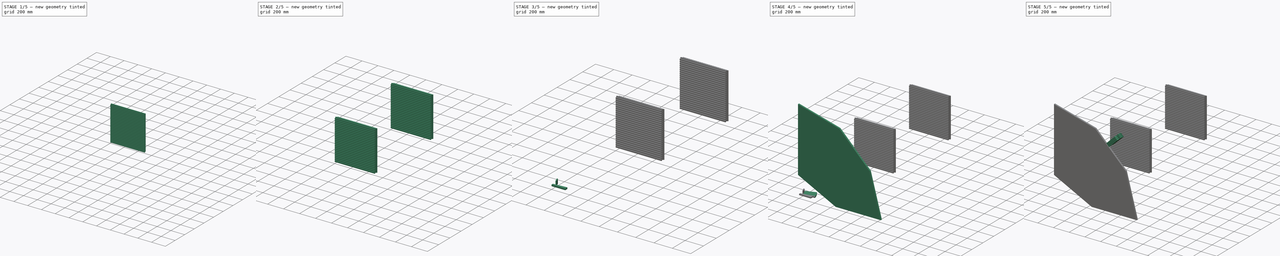
[diagram: build sequence overview — one tinted view per stage of 5, left to right]
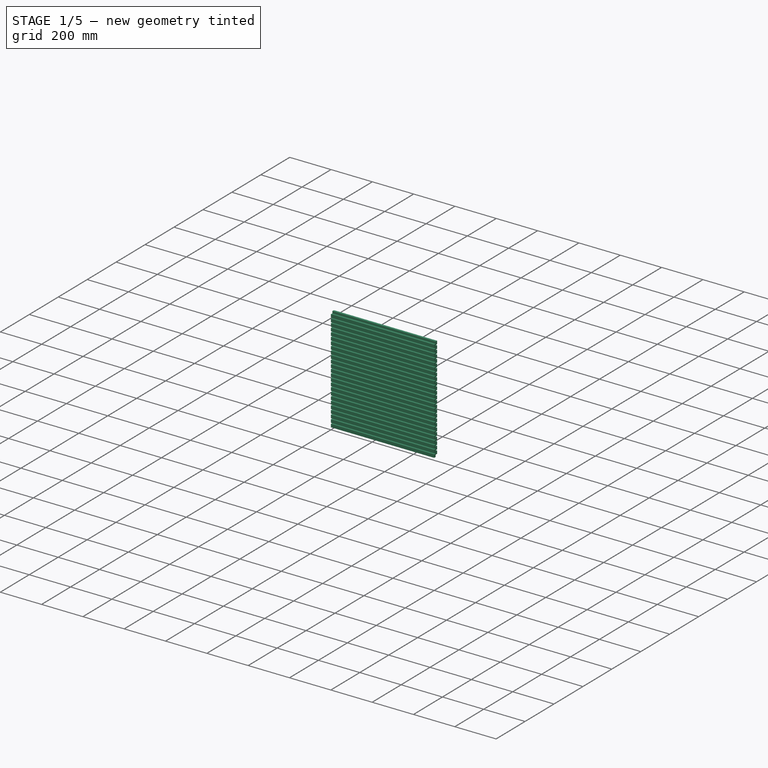
[diagram: stage 1 of 5 — iso view after this stage's code; geometry added in this stage tinted green]
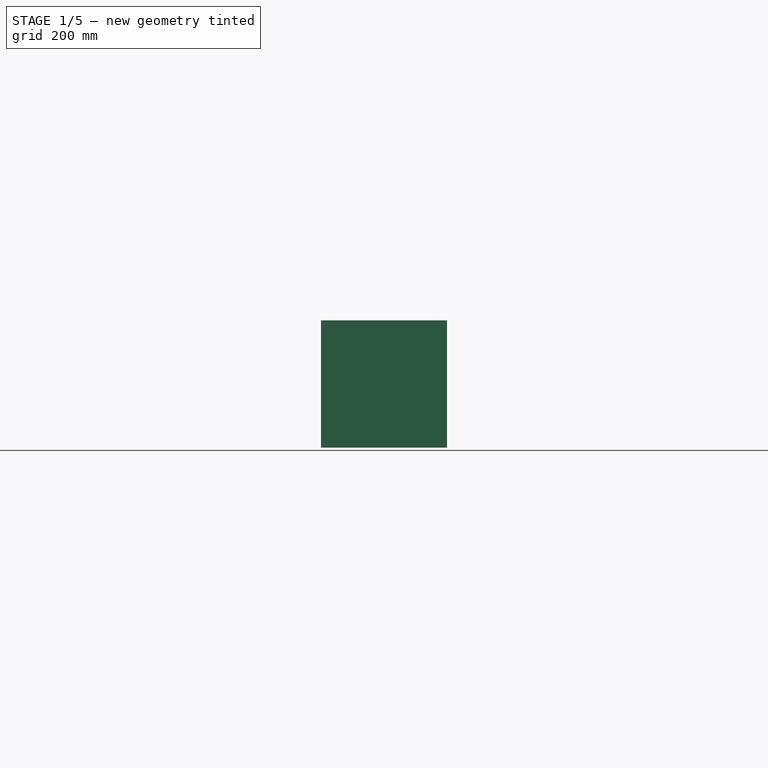
[diagram: stage 1 of 5 — front view after this stage's code; geometry added in this stage tinted green]
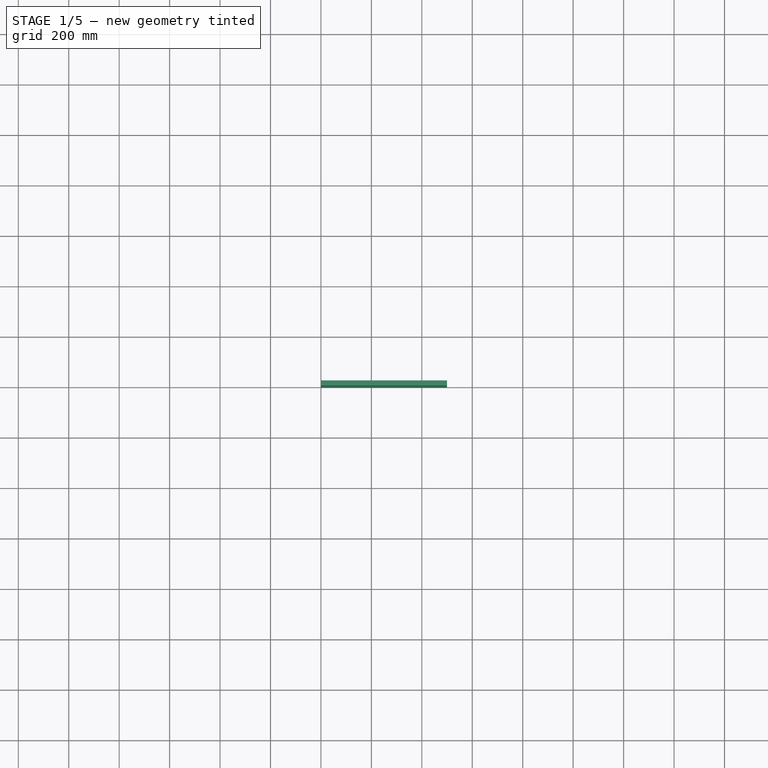
[diagram: stage 1 of 5 — top view after this stage's code; geometry added in this stage tinted green]
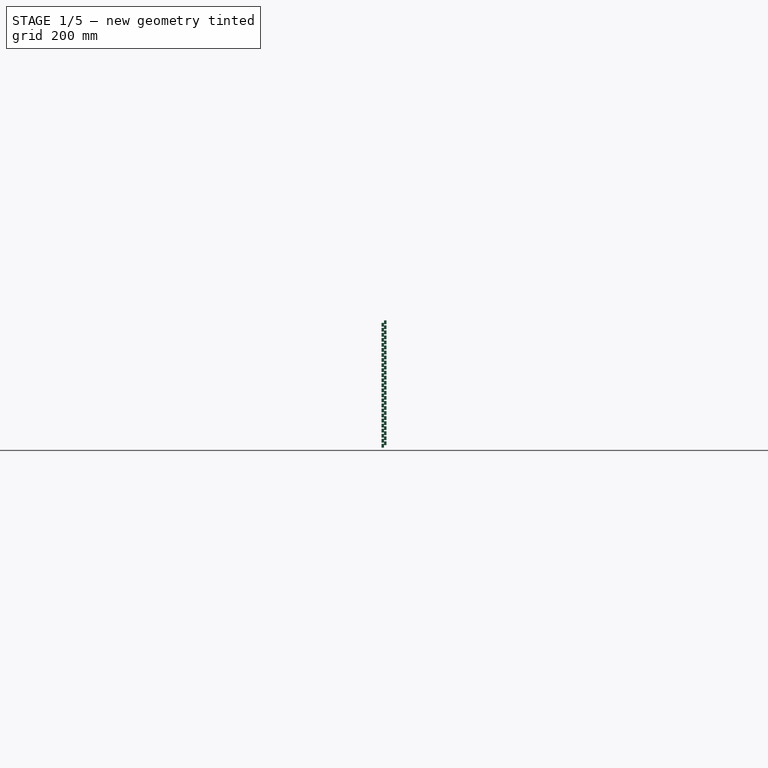
[diagram: stage 1 of 5 — right view after this stage's code; geometry added in this stage tinted green]
FCSTD DOCUMENT  (FreeCAD 0.16R)
Label: edd
License: All rights reserved
LicenseURL: http://en.wikipedia.org/wiki/All_rights_reserved
objects: Part::MultiFuse×7, Part::FeaturePython×6, Sketcher::SketchObject×3, PartDesign::Pad×3, Part::Chamfer×2, Part::Box×2, Part::Cylinder×1
note: 27 computed .brp shape members not serialized (recipe doc carries the construction recipe); baked Part::Feature solids carry a one-line shape summary decoded from their .brp

FEATURE [Part::Box] Box  label="Bar"
  Height = 15
  Length = 500
  Width = 10
FEATURE [Part::FeaturePython] Array002  label="Bars"  # Draft array (typed FeaturePython)
  Angle = 360
  ArrayType = 0
  Axis = (0,0,1)
  Base = -> Box
  Center = (0,0,0)
  Fuse = false
  IntervalAxis = (0,0,0)
  IntervalX = (0,0,0)
  IntervalY = (0,1,0)
  IntervalZ = (0,0,20)
  NumberPolar = 1
  NumberX = 1
  NumberY = 1
  NumberZ = 25
FEATURE [Part::FeaturePython] Clone  label="Bars2"  # Draft clone (typed FeaturePython)
  Objects = -> [Array002]
  Placement = pos=(0,10,10) rot=(0,0,1;0rad)
  Scale = (1,1,1)
FEATURE [Part::MultiFuse] Fusion004  label="BarMatrix1"
  Shapes = -> [Clone,Array002]
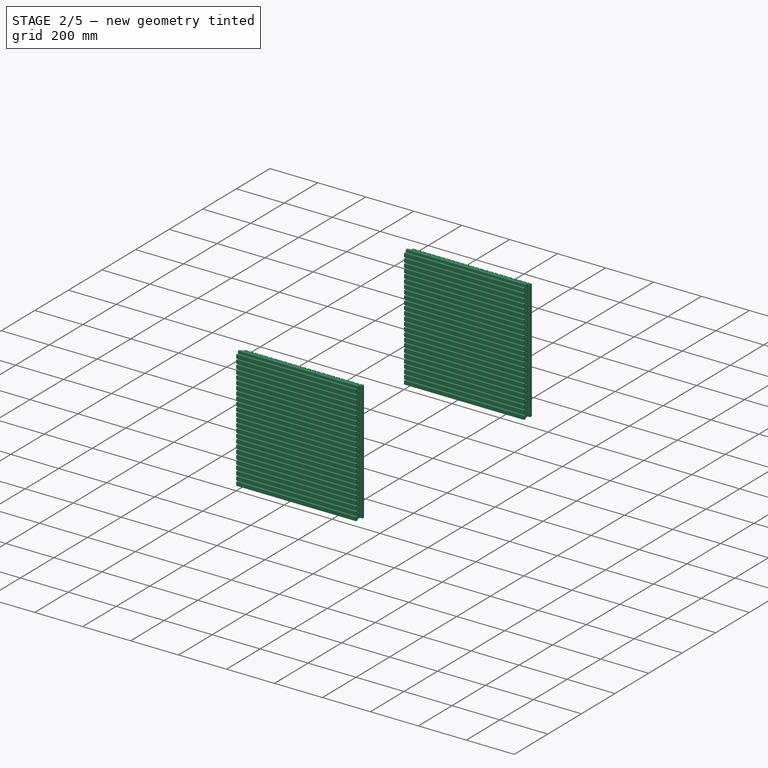
[diagram: stage 2 of 5 — iso view after this stage's code; geometry added in this stage tinted green]
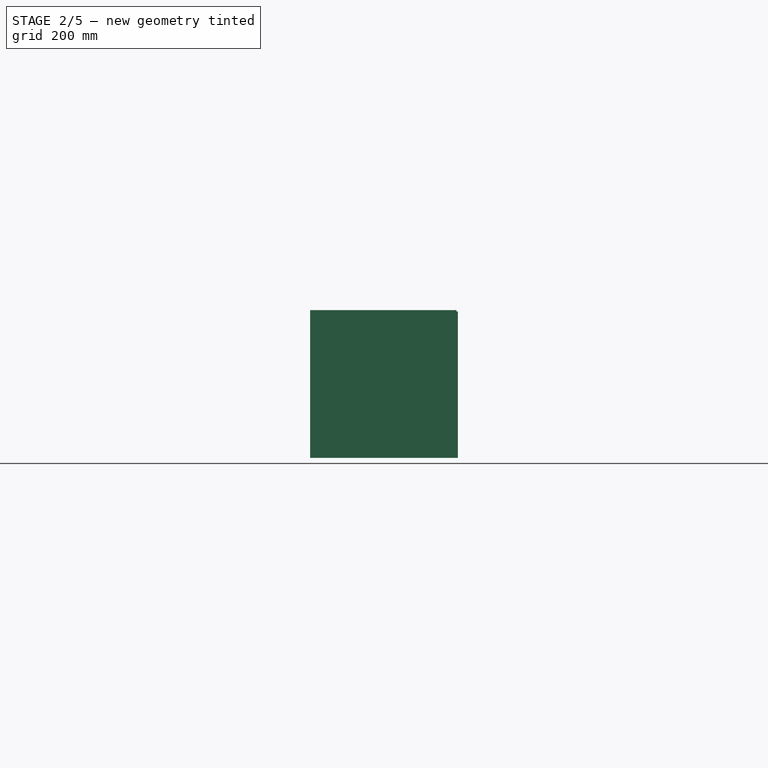
[diagram: stage 2 of 5 — front view after this stage's code; geometry added in this stage tinted green]
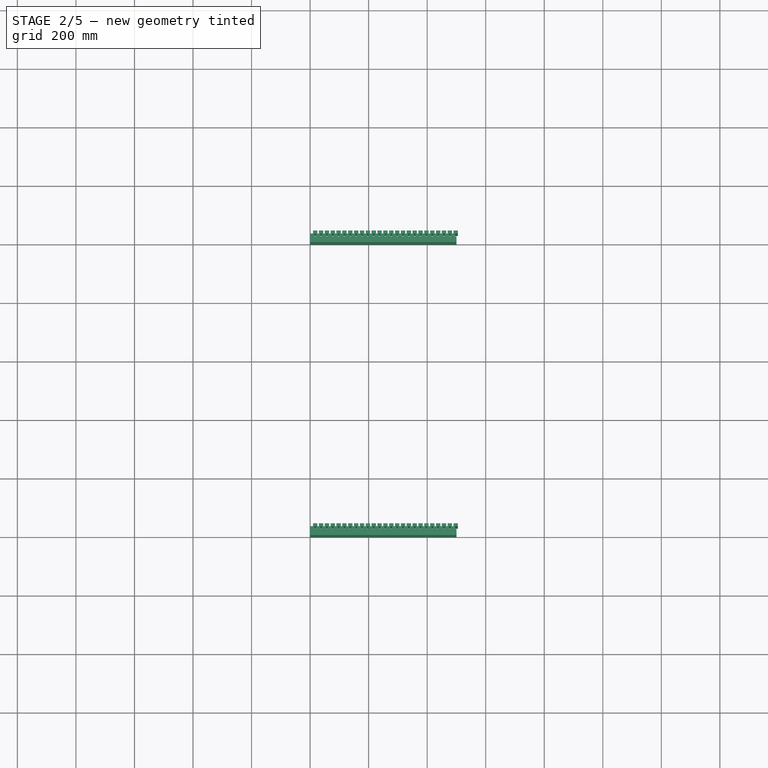
[diagram: stage 2 of 5 — top view after this stage's code; geometry added in this stage tinted green]
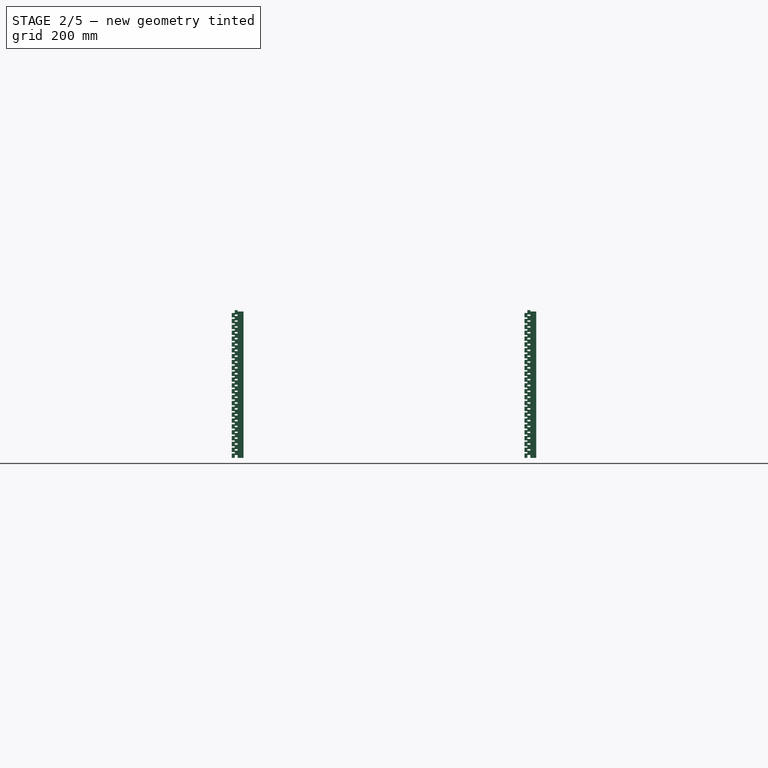
[diagram: stage 2 of 5 — right view after this stage's code; geometry added in this stage tinted green]
FEATURE [Part::FeaturePython] Clone001  label="BarMatrix2"  # Draft clone (typed FeaturePython)
  Objects = -> [Fusion004]
  Placement = pos=(0,20,500) rot=(0,1,0;1.5708rad)
  Scale = (1,1,1)
FEATURE [Part::MultiFuse] Fusion005  label="BarBox1"
  Placement = pos=(0,1000,0) rot=(0,0,1;0rad)
  Shapes = -> [Fusion004,Clone001]
FEATURE [Part::FeaturePython] Clone002  label="BarBox2"  # Draft clone (typed FeaturePython)
  Objects = -> [Fusion005]
  Placement = pos=(0,2000,0) rot=(0,0,1;0rad)
  Scale = (1,1,1)
FEATURE [Part::MultiFuse] Fusion006  label="Cosmics"
  Shapes = -> [Fusion005,Clone002]
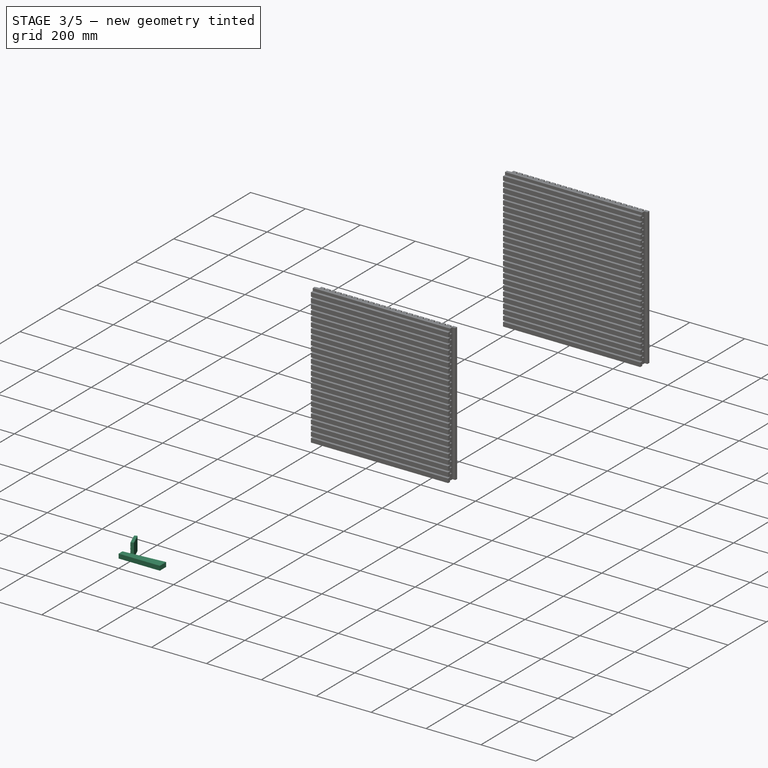
[diagram: stage 3 of 5 — iso view after this stage's code; geometry added in this stage tinted green]
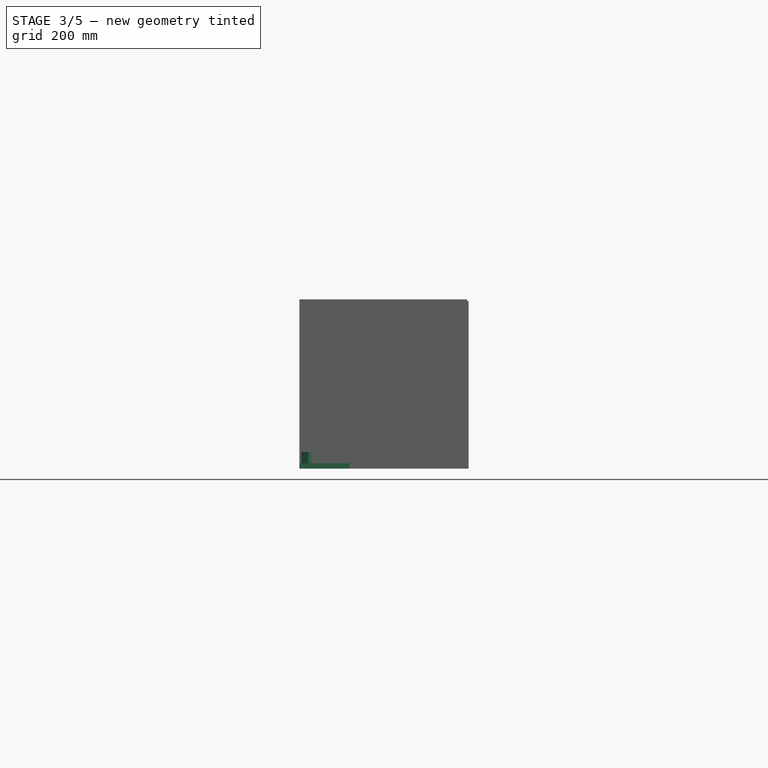
[diagram: stage 3 of 5 — front view after this stage's code; geometry added in this stage tinted green]
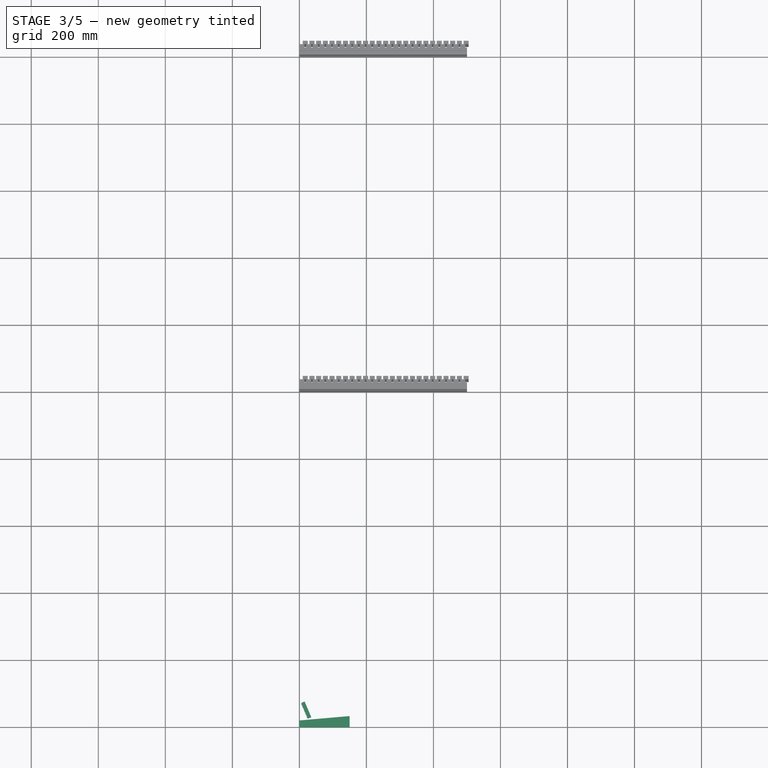
[diagram: stage 3 of 5 — top view after this stage's code; geometry added in this stage tinted green]
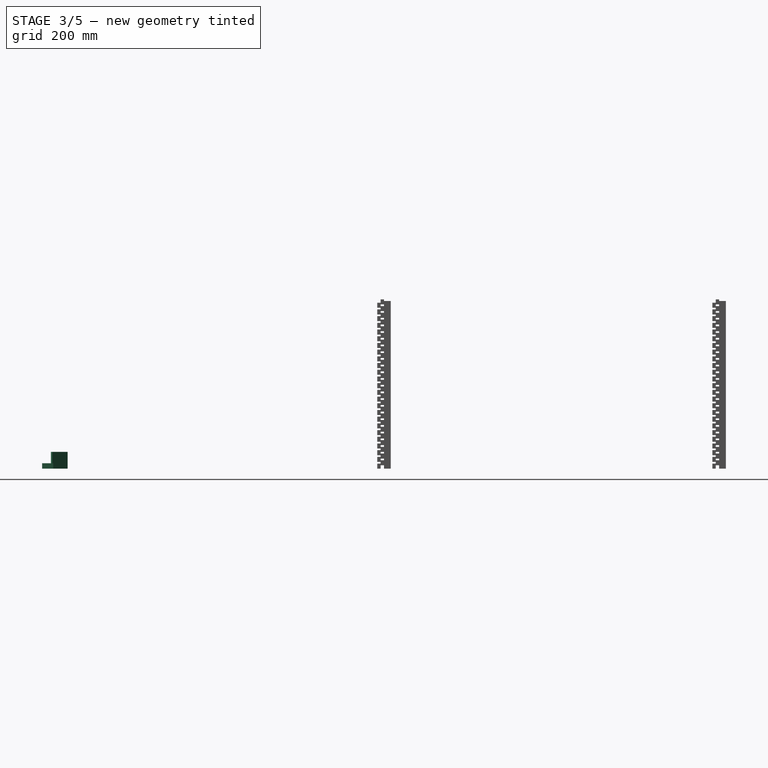
[diagram: stage 3 of 5 — right view after this stage's code; geometry added in this stage tinted green]
FEATURE [PartDesign::Pad] Pad001  label="Prism"
  Length = 16
  Length2 = 100
  Sketch = -> Sketch002
  Type = 0
FEATURE [Part::Box] Box001  label="Sensor001"
  Height = 50
  Length = 10
  Width = 50
FEATURE [Part::Cylinder] Cylinder  label="Connectors"
  Angle = 360
  Height = 5
  Placement = pos=(-2,2,2) rot=(0,1,0;1.5708rad)
  Radius = 0.5
FEATURE [Part::FeaturePython] Array001  # Draft array (typed FeaturePython)
  Angle = 360
  ArrayType = 0
  Axis = (0,0,1)
  Base = -> Cylinder
  Center = (0,0,0)
  Fuse = false
  IntervalAxis = (0,0,0)
  IntervalX = (1,0,0)
  IntervalY = (0,2.4,0)
  IntervalZ = (0,0,2.4)
  NumberPolar = 1
  NumberX = 1
  NumberY = 20
  NumberZ = 20
FEATURE [Part::MultiFuse] Fusion003  label="Sensor"
  Placement = pos=(26,26,0) rot=(0,0,1;0.401426rad)
  Shapes = -> [Box001,Array001]
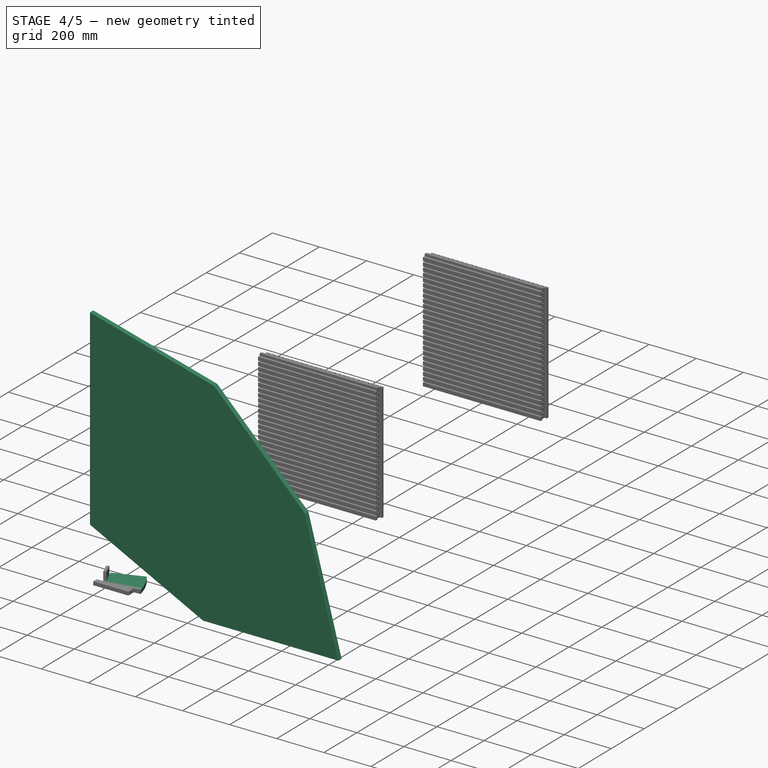
[diagram: stage 4 of 5 — iso view after this stage's code; geometry added in this stage tinted green]
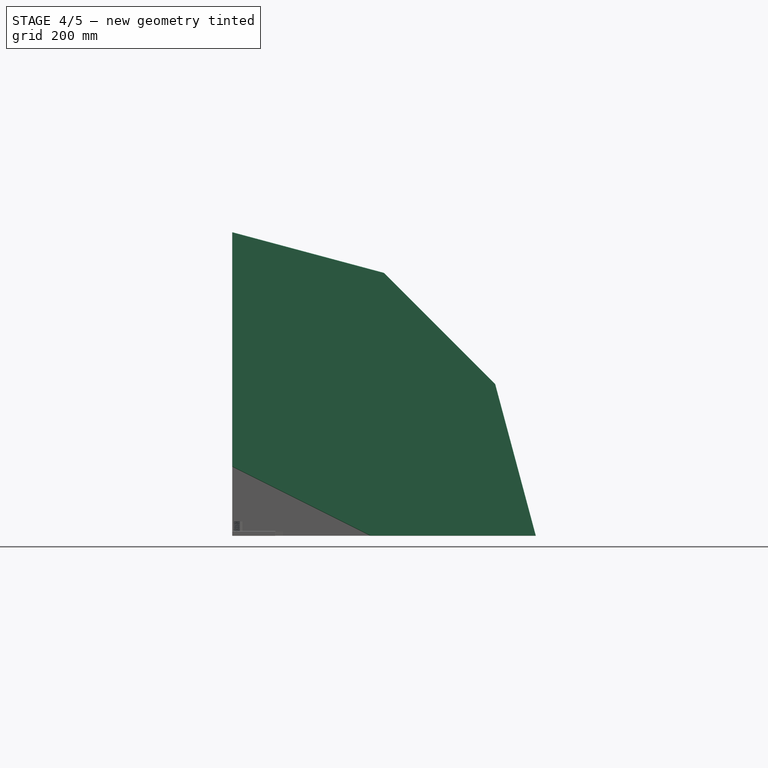
[diagram: stage 4 of 5 — front view after this stage's code; geometry added in this stage tinted green]
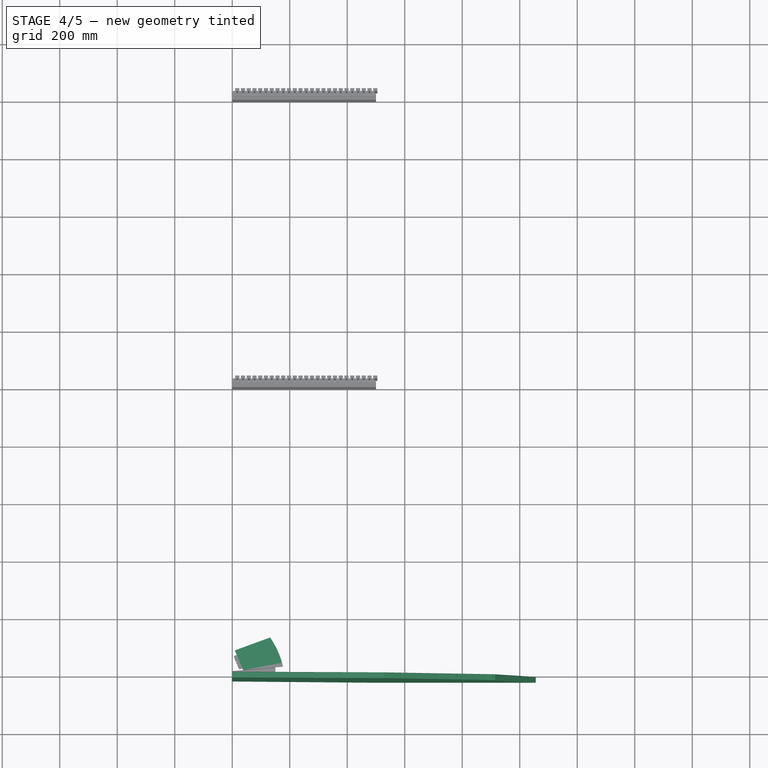
[diagram: stage 4 of 5 — top view after this stage's code; geometry added in this stage tinted green]
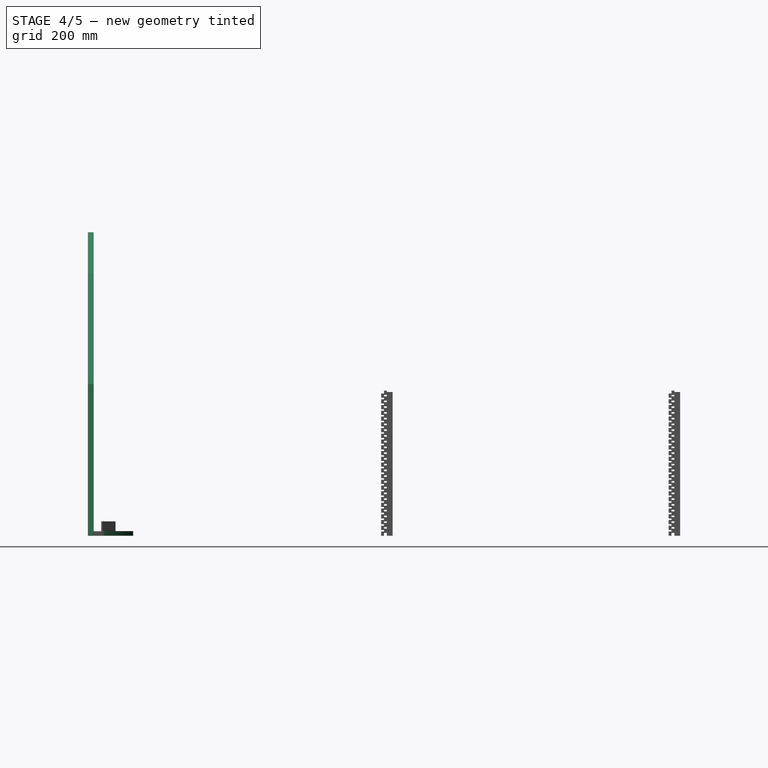
[diagram: stage 4 of 5 — right view after this stage's code; geometry added in this stage tinted green]
FEATURE [Sketcher::SketchObject] Sketch
  Placement = pos=(-104.021,-28,0) rot=(0,0,1;0.087266rad)
  sketch-geometry (4):
    g0: LineSegment StartX=146.021 StartY=39.004 StartZ=0 EndX=285.117 EndY=39.004 EndZ=0
    g1: LineSegment StartX=249.15 StartY=144.004 StartZ=0 EndX=122.999 EndY=109.858 EndZ=0
    g2: LineSegment StartX=122.999 StartY=109.858 StartZ=0 EndX=146.021 EndY=39.004 EndZ=0
    g3: ArcOfCircle CenterX=-0.000389105 CenterY=-0.000794054 CenterZ=0 NormalX=0 NormalY=0 NormalZ=1 Radius=287.773 StartAngle=0.135959 EndAngle=0.524074
  constraints (12):
    c: Coincident(g2,g0)
    c: Parallel(g0,g-1)
    c: DistanceY(g-1,g0) = 39.004
    c: DistanceX(g-1,g0) = 146.021
    c: Coincident(g2,g1)
    c: DistanceX(g0,g0) = 139.096
    c: Distance(g2) = 74.5
    c: DistanceY(g0,g1) = 105
    c: Angle(g0,g2) = 1.88496
    c: Radius(g3) = 287.773
    c: Coincident(g0,g3)
    c: Coincident(g1,g3)
FEATURE [Sketcher::SketchObject] Sketch001
  Placement = pos=(0,0,0) rot=(1,0,0;1.5708rad)
  sketch-geometry (6):
    g0: LineSegment StartX=480 StartY=0 StartZ=0 EndX=1056 EndY=0 EndZ=0
    g1: LineSegment StartX=1056 StartY=0 StartZ=0 EndX=914.523 EndY=528 EndZ=0
    g2: LineSegment StartX=914.523 StartY=528 StartZ=0 EndX=528 EndY=914.523 EndZ=0
    g3: LineSegment StartX=528 StartY=914.523 StartZ=0 EndX=0 EndY=1056 EndZ=0
    g4: LineSegment StartX=0 StartY=1056 StartZ=0 EndX=0 EndY=240 EndZ=0
    g5: LineSegment StartX=0 StartY=240 StartZ=0 EndX=480 EndY=0 EndZ=0
  constraints (18):
    c: Coincident(g0,g1)
    c: Coincident(g1,g2)
    c: Coincident(g2,g3)
    c: Coincident(g3,g4)
    c: Coincident(g4,g5)
    c: Coincident(g5,g0)
    c: DistanceY(g-1,g0) = 0
    c: Parallel(g0,g-1)
    c: DistanceX(g-1,g3) = 0
    c: Parallel(g-2,g4)
    c: Angle(g3,g2) = 2.61799
    c: Angle(g2,g1) = 2.61799
    c: Angle(g4,g3) = 1.309
    c: DistanceX(g-1,g0) = 480
    c: DistanceX(g-1,g0) = 1056
    c: Distance(g-1,g1) = 1056
    c: Distance(g-1,g2) = 1056
    c: Distance(g-1,g4) = 240
FEATURE [Sketcher::SketchObject] Sketch002
  sketch-geometry (4):
    g0: LineSegment StartX=0 StartY=0 StartZ=0 EndX=0 EndY=20 EndZ=0
    g1: LineSegment StartX=0 StartY=20 StartZ=0 EndX=150 EndY=33.1233 EndZ=0
    g2: LineSegment StartX=150 StartY=33.1233 StartZ=0 EndX=150 EndY=0 EndZ=0
    g3: LineSegment StartX=150 StartY=0 StartZ=0 EndX=0 EndY=0 EndZ=0
  constraints (11):
    c: Coincident(g0,g1)
    c: Coincident(g1,g2)
    c: Coincident(g2,g3)
    c: Coincident(g3,g0)
    c: Coincident(g0,g-1)
    c: Parallel(g0,g-2)
    c: Parallel(g3,g-1)
    c: Angle(g0,g1) = 1.65806
    c: Distance(g0,g0) = 20
    c: Parallel(g2,g0)
    c: Distance(g3) = 150
FEATURE [PartDesign::Pad] Pad  label="FEL"
  Length = 16
  Length2 = 100
  Placement = pos=(-104.021,-28,0) rot=(0,0,1;0.087266rad)
  Sketch = -> Sketch
  Type = 0
FEATURE [PartDesign::Pad] Pad002  label="Radiator"
  Length = 20
  Length2 = 100
  Placement = pos=(0,0,0) rot=(1,0,0;1.5708rad)
  Sketch = -> Sketch001
  Type = 0
FEATURE [Part::Chamfer] Chamfer
  Base = -> Pad002
  Edges = 18 edges r=1: [Edge1,Edge2,Edge3,Edge4,Edge5,Edge6,Edge7,Edge8,Edge9,Edge10,Edge11,Edge12,Edge13,Edge14,Edge15,Edge16,Edge17,Edge18]
FEATURE [Part::Chamfer] Chamfer001
  Base = -> Pad001
  Edges = 12 edges r=1: [Edge1,Edge2,Edge3,Edge4,Edge5,Edge6,Edge7,Edge8,Edge9,Edge10,Edge11,Edge12]
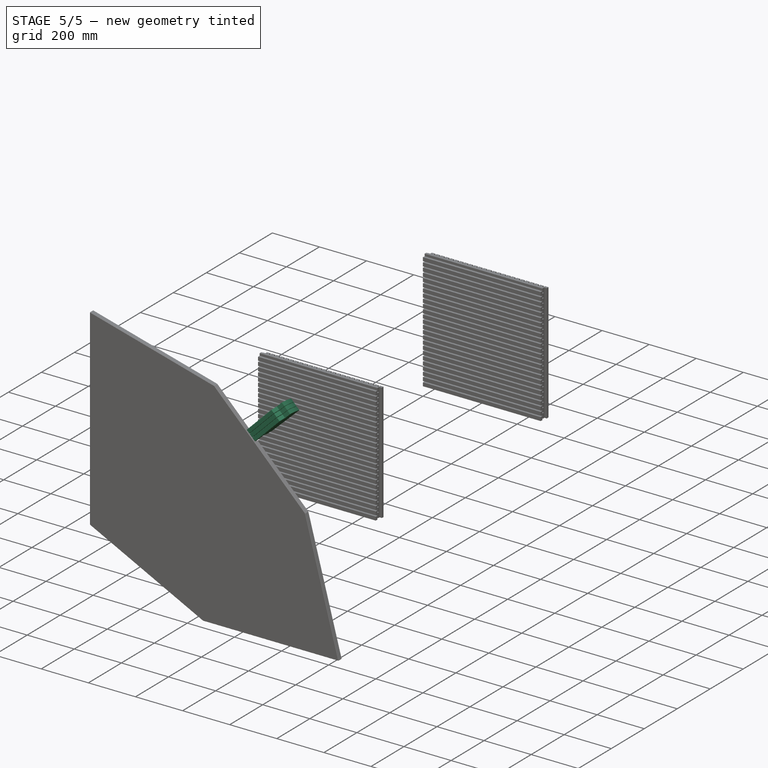
[diagram: stage 5 of 5 — iso view after this stage's code; geometry added in this stage tinted green]
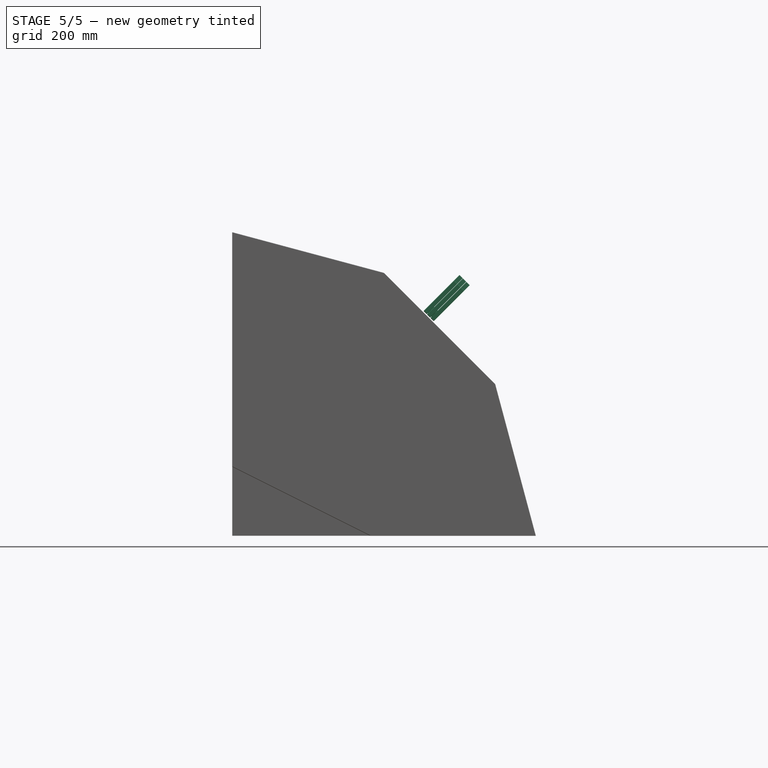
[diagram: stage 5 of 5 — front view after this stage's code; geometry added in this stage tinted green]
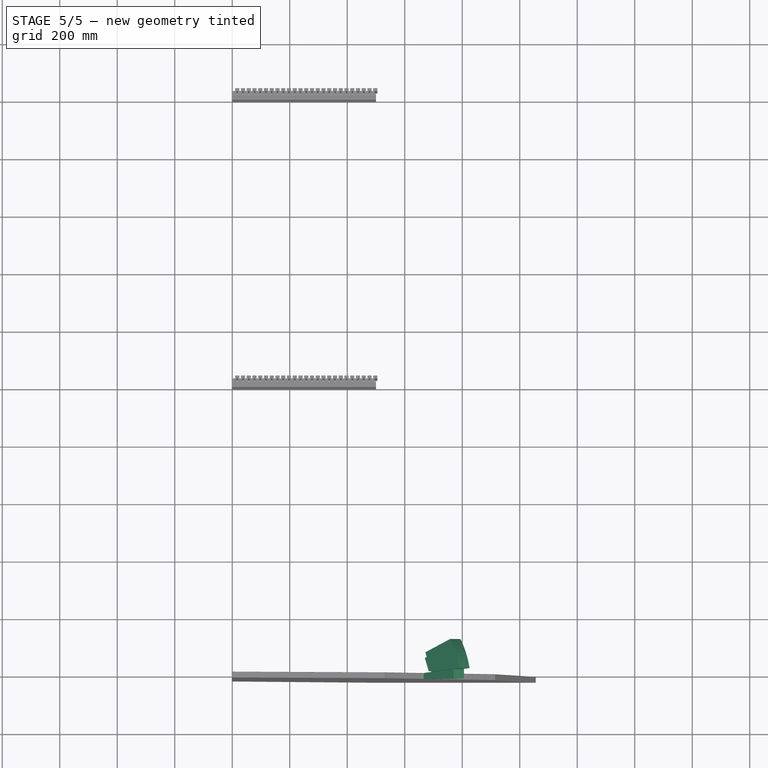
[diagram: stage 5 of 5 — top view after this stage's code; geometry added in this stage tinted green]
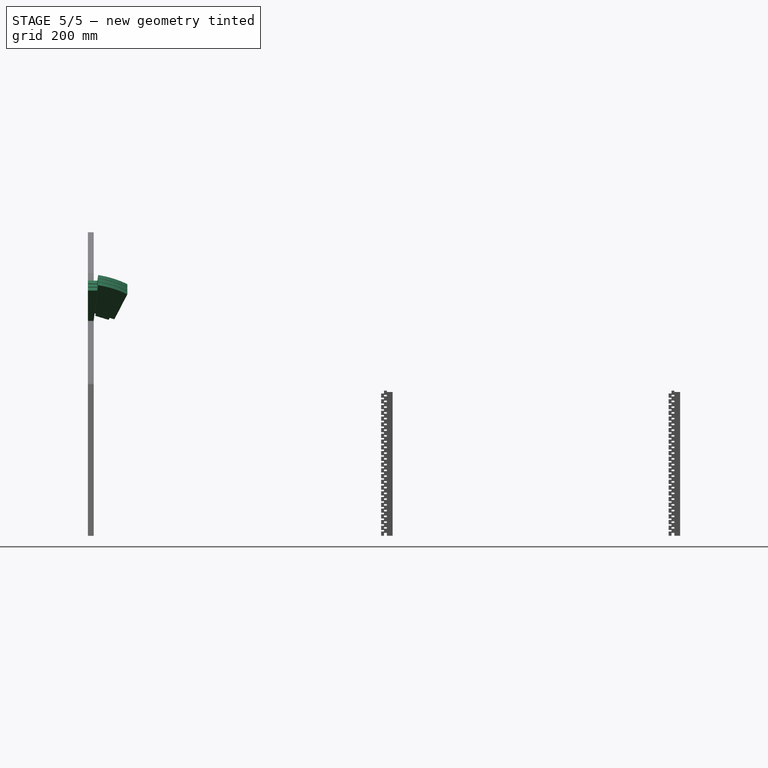
[diagram: stage 5 of 5 — right view after this stage's code; geometry added in this stage tinted green]
FEATURE [Part::MultiFuse] Fusion  label="PrismFEL"
  Shapes = -> [Pad,Chamfer001]
FEATURE [Part::FeaturePython] Array  # Draft array (typed FeaturePython)
  Angle = 360
  ArrayType = 0
  Axis = (0,0,1)
  Base = -> Fusion
  Center = (0,0,0)
  Fuse = false
  IntervalAxis = (0,0,0)
  IntervalX = (1,0,0)
  IntervalY = (0,1,0)
  IntervalZ = (0,0,17)
  NumberPolar = 1
  NumberX = 1
  NumberY = 1
  NumberZ = 3
FEATURE [Part::MultiFuse] Fusion001  label="ROM"
  Placement = pos=(700.705,-20,746.705) rot=(0,-1,0;0.785398rad)
  Shapes = -> [Array,Fusion003]
FEATURE [Part::MultiFuse] Fusion002  label="EDD"
  Shapes = -> [Fusion001,Chamfer]
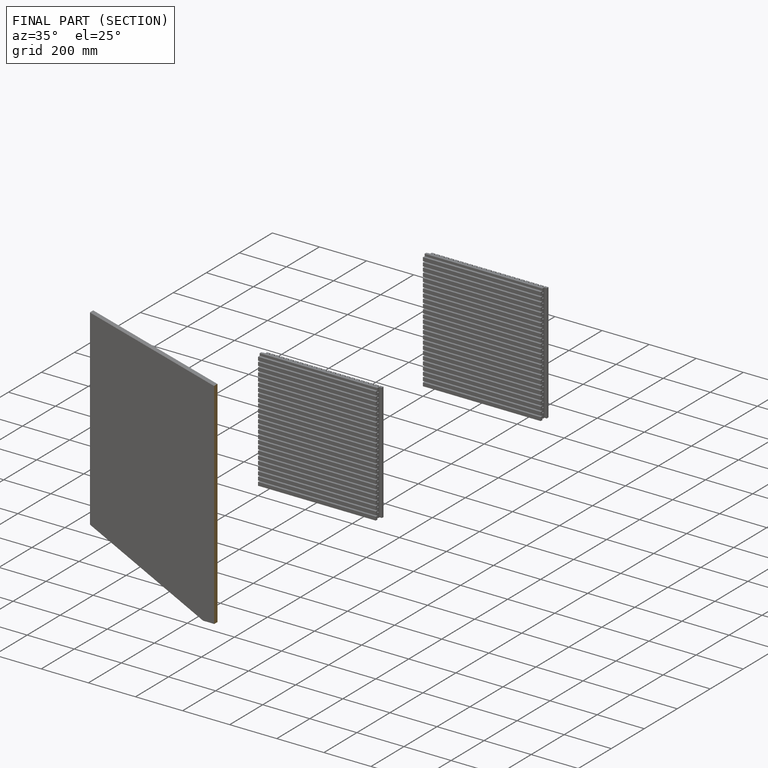
[diagram: finished part — half-section view (interior)]
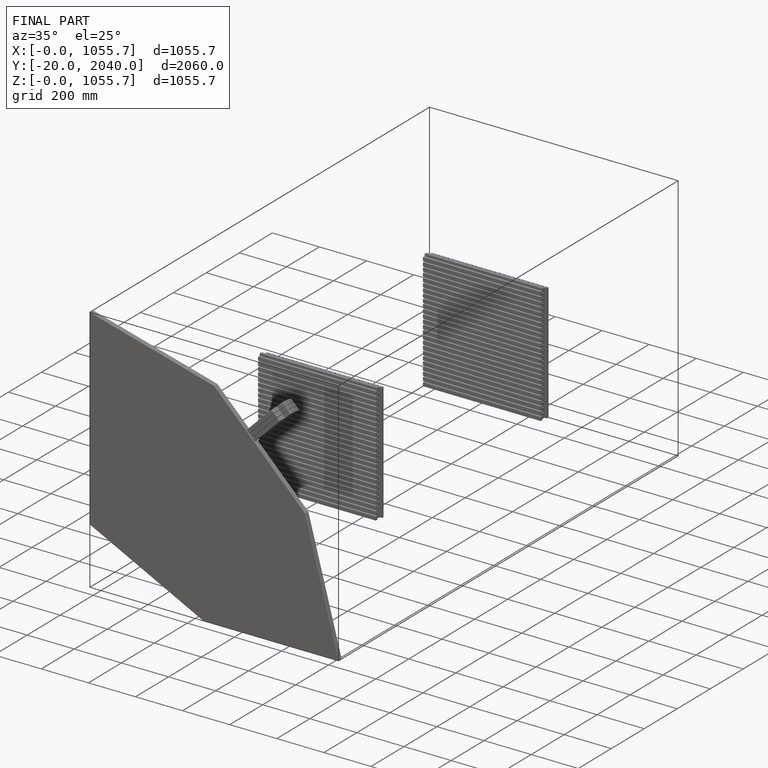
[diagram: finished part — iso view with bounding-box wireframe]
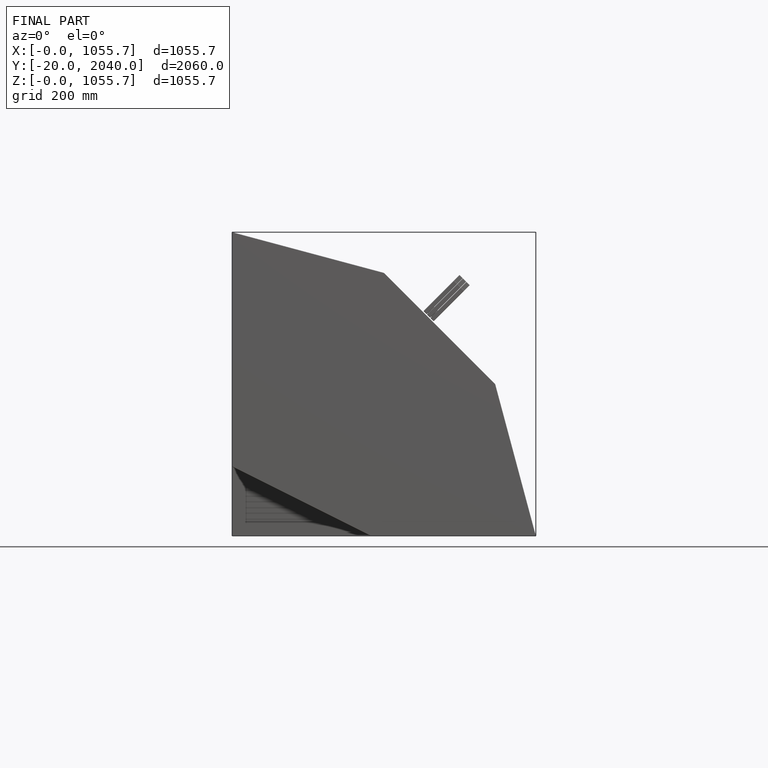
[diagram: finished part — front view with bounding-box wireframe]
